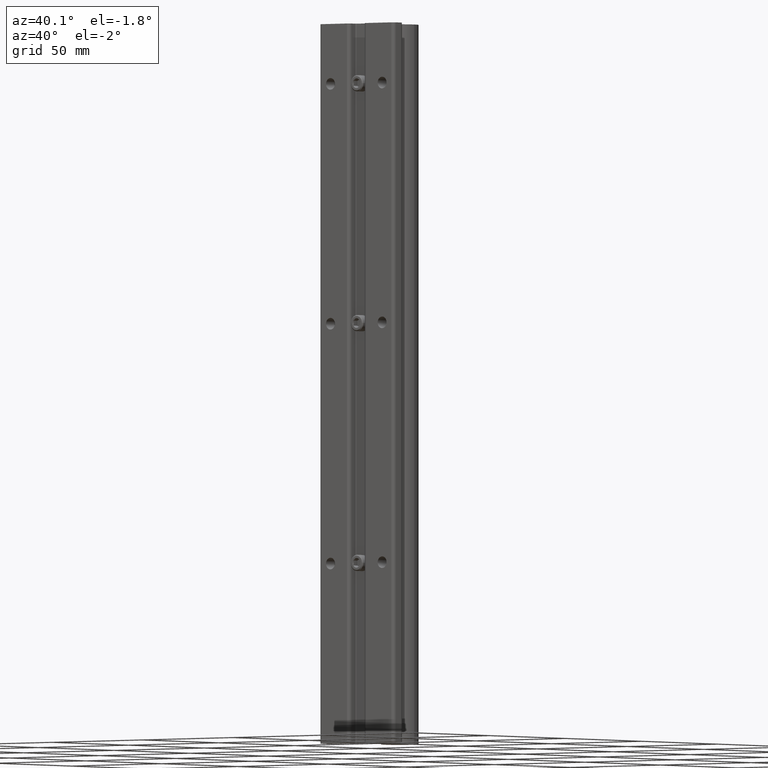
[diagram: clean part render]
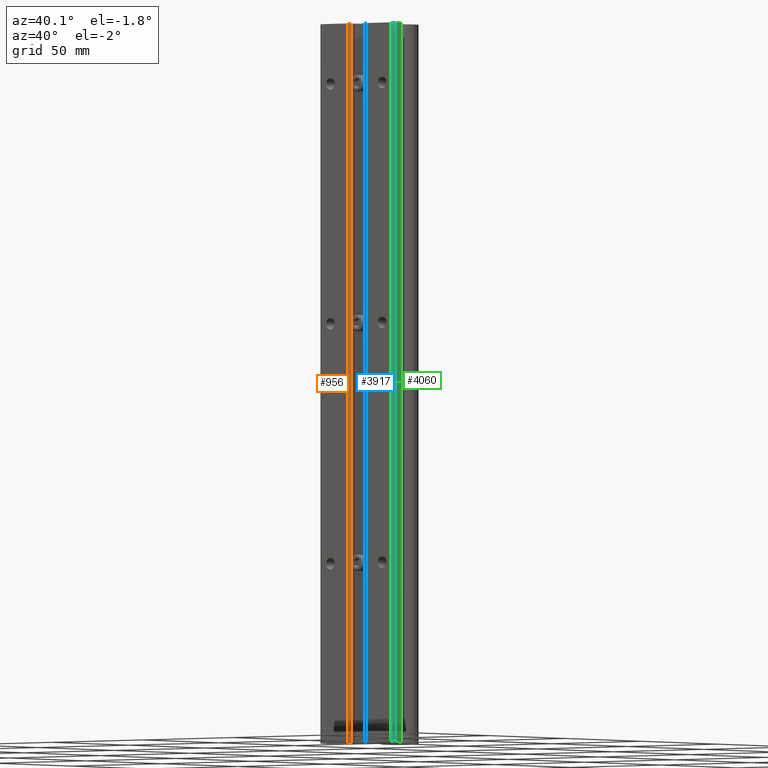
[diagram: same view with three faces highlighted in distinct colors, each labeled with its STEP entity id]
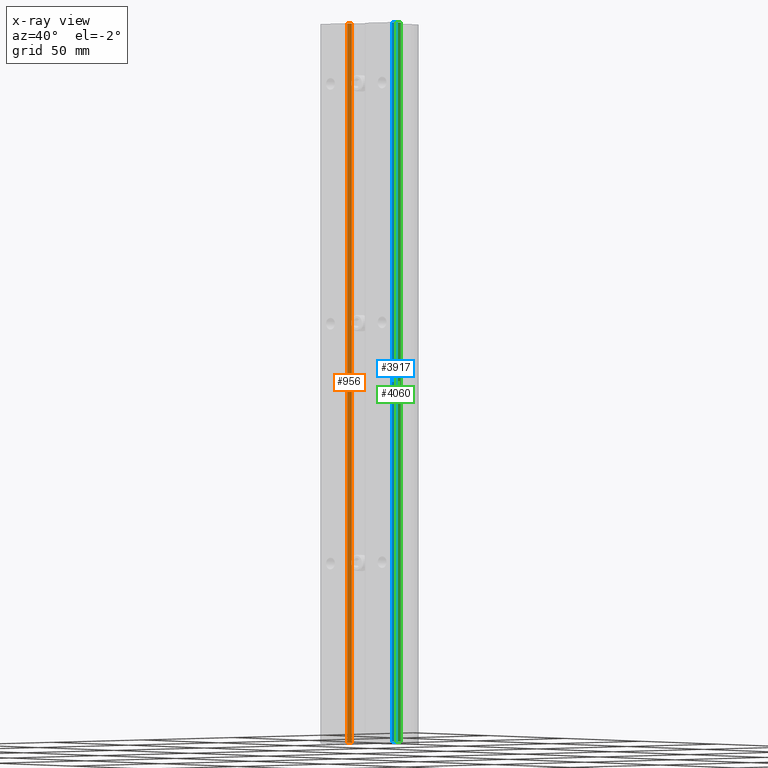
[diagram: x-ray of the same camera — body ghosted, the three highlighted faces saturated]
A machine part, auxiliary view with three faces highlighted in distinct colors.
The next image is the same camera in x-ray (body ghosted, the three faces saturated) — at least one of them is partly hidden behind the body in this view.
Their STEP definitions:

[orange] entity #956 — the highlighted cylindrical surface (edge-blend (fillet) strip) has radius 1.524 mm, axis along (0, 0, 1).
#124 = EDGE_LOOP ( 'NONE', ( #2429, #3411, #7536, #6951 ) ) ;
#333 = CIRCLE ( 'NONE', #586, 0.06000000000000010880 ) ;
#586 = AXIS2_PLACEMENT_3D ( 'NONE', #6562, #4735, #4158 ) ;
#594 = DIRECTION ( 'NONE',  ( -0.000000000000000000, -0.000000000000000000, -1.000000000000000000 ) ) ;
#671 = CARTESIAN_POINT ( 'NONE',  ( -0.1550000000000031908, 0.06000000000000021289, 0.000000000000000000 ) ) ;
#956 = ADVANCED_FACE ( 'NONE', ( #5830 ), #4510, .T. ) ;
#1044 = AXIS2_PLACEMENT_3D ( 'NONE', #4162, #594, #2940 ) ;
#1475 = DIRECTION ( 'NONE',  ( 0.000000000000000000, 0.000000000000000000, 1.000000000000000000 ) ) ;
#1623 = DIRECTION ( 'NONE',  ( 1.000000000000000000, 0.000000000000000000, 0.000000000000000000 ) ) ;
#1855 = VERTEX_POINT ( 'NONE', #5879 ) ;
#2429 = ORIENTED_EDGE ( 'NONE', *, *, #6572, .F. ) ;
#2673 = CARTESIAN_POINT ( 'NONE',  ( -0.2150000000000032996, 0.06000000000000021289, -13.83356500330709338 ) ) ;
#2834 = CIRCLE ( 'NONE', #1044, 0.06000000000000010880 ) ;
#2940 = DIRECTION ( 'NONE',  ( 1.000000000000000000, 0.000000000000000000, 0.000000000000000000 ) ) ;
#3238 = VERTEX_POINT ( 'NONE', #5891 ) ;
#3241 = VECTOR ( 'NONE', #6026, 39.37007874015748143 ) ;
#3411 = ORIENTED_EDGE ( 'NONE', *, *, #3704, .T. ) ;
#3463 = CARTESIAN_POINT ( 'NONE',  ( -0.1550000000000031908, 0.06000000000000021289, -13.83356500330709338 ) ) ;
#3704 = EDGE_CURVE ( 'NONE', #6028, #6601, #7102, .T. ) ;
#3763 = VECTOR ( 'NONE', #7050, 39.37007874015748143 ) ;
#4158 = DIRECTION ( 'NONE',  ( 1.000000000000000000, 0.000000000000000000, 0.000000000000000000 ) ) ;
#4162 = CARTESIAN_POINT ( 'NONE',  ( -0.2150000000000032996, 0.06000000000000021289, -12.00000000000000178 ) ) ;
#4510 = CYLINDRICAL_SURFACE ( 'NONE', #7381, 0.06000000000000010880 ) ;
#4735 = DIRECTION ( 'NONE',  ( 0.000000000000000000, 0.000000000000000000, 1.000000000000000000 ) ) ;
#4967 = EDGE_CURVE ( 'NONE', #3238, #6601, #333, .T. ) ;
#5075 = EDGE_CURVE ( 'NONE', #1855, #3238, #7009, .T. ) ;
#5830 = FACE_OUTER_BOUND ( 'NONE', #124, .T. ) ;
#5879 = CARTESIAN_POINT ( 'NONE',  ( -0.1944787914004638685, 0.003618442752845388386, -12.00000000000000178 ) ) ;
#5891 = CARTESIAN_POINT ( 'NONE',  ( -0.1944787914004638685, 0.003618442752845393157, 0.000000000000000000 ) ) ;
#6026 = DIRECTION ( 'NONE',  ( 0.000000000000000000, 0.000000000000000000, 1.000000000000000000 ) ) ;
#6028 = VERTEX_POINT ( 'NONE', #7212 ) ;
#6562 = CARTESIAN_POINT ( 'NONE',  ( -0.2150000000000032996, 0.06000000000000021289, 0.000000000000000000 ) ) ;
#6572 = EDGE_CURVE ( 'NONE', #6028, #1855, #2834, .T. ) ;
#6601 = VERTEX_POINT ( 'NONE', #671 ) ;
#6951 = ORIENTED_EDGE ( 'NONE', *, *, #5075, .F. ) ;
#7009 = LINE ( 'NONE', #7704, #3763 ) ;
#7050 = DIRECTION ( 'NONE',  ( 0.000000000000000000, 0.000000000000000000, 1.000000000000000000 ) ) ;
#7102 = LINE ( 'NONE', #3463, #3241 ) ;
#7212 = CARTESIAN_POINT ( 'NONE',  ( -0.1550000000000031908, 0.06000000000000021289, -12.00000000000000178 ) ) ;
#7381 = AXIS2_PLACEMENT_3D ( 'NONE', #2673, #1475, #1623 ) ;
#7536 = ORIENTED_EDGE ( 'NONE', *, *, #4967, .F. ) ;
#7704 = CARTESIAN_POINT ( 'NONE',  ( -0.1944787914004638685, 0.003618442752845393157, -13.83356500330709338 ) ) ;

[blue] entity #3917 — the highlighted cylindrical surface (edge-blend (fillet) strip) has radius 1.524 mm, axis along (0, 0, 1).
#117 = CARTESIAN_POINT ( 'NONE',  ( 0.8124999999999946709, 0.06000000000000021289, 0.000000000000000000 ) ) ;
#430 = DIRECTION ( 'NONE',  ( 0.000000000000000000, 0.000000000000000000, 1.000000000000000000 ) ) ;
#710 = CARTESIAN_POINT ( 'NONE',  ( 0.8124999999999946709, 0.06000000000000021289, -13.83356500330709338 ) ) ;
#920 = EDGE_CURVE ( 'NONE', #4661, #4462, #3949, .T. ) ;
#954 = CARTESIAN_POINT ( 'NONE',  ( 0.8124999999999946709, 0.06000000000000021289, -12.00000000000000178 ) ) ;
#986 = VERTEX_POINT ( 'NONE', #2872 ) ;
#1127 = DIRECTION ( 'NONE',  ( 1.000000000000000000, 0.000000000000000000, 0.000000000000000000 ) ) ;
#1423 = DIRECTION ( 'NONE',  ( 1.000000000000000000, 0.000000000000000000, 0.000000000000000000 ) ) ;
#1852 = CARTESIAN_POINT ( 'NONE',  ( 0.7730212085995341598, 0.003618442752845427417, -13.83356500330709338 ) ) ;
#1928 = LINE ( 'NONE', #710, #3003 ) ;
#2211 = ORIENTED_EDGE ( 'NONE', *, *, #5139, .T. ) ;
#2694 = AXIS2_PLACEMENT_3D ( 'NONE', #6530, #430, #1127 ) ;
#2872 = CARTESIAN_POINT ( 'NONE',  ( 0.7730212085995341598, 0.003618442752845393157, 0.000000000000000000 ) ) ;
#2942 = VECTOR ( 'NONE', #4852, 39.37007874015748143 ) ;
#3003 = VECTOR ( 'NONE', #3141, 39.37007874015748143 ) ;
#3020 = LINE ( 'NONE', #1852, #2942 ) ;
#3141 = DIRECTION ( 'NONE',  ( 0.000000000000000000, 0.000000000000000000, 1.000000000000000000 ) ) ;
#3198 = EDGE_CURVE ( 'NONE', #986, #4857, #3559, .T. ) ;
#3234 = EDGE_LOOP ( 'NONE', ( #4388, #2211, #3880, #4933 ) ) ;
#3351 = EDGE_CURVE ( 'NONE', #4462, #986, #3020, .T. ) ;
#3559 = CIRCLE ( 'NONE', #6996, 0.06000000000000017819 ) ;
#3880 = ORIENTED_EDGE ( 'NONE', *, *, #3198, .F. ) ;
#3917 = ADVANCED_FACE ( 'NONE', ( #6291 ), #5826, .T. ) ;
#3949 = CIRCLE ( 'NONE', #5124, 0.06000000000000017819 ) ;
#4388 = ORIENTED_EDGE ( 'NONE', *, *, #920, .F. ) ;
#4462 = VERTEX_POINT ( 'NONE', #7197 ) ;
#4583 = CARTESIAN_POINT ( 'NONE',  ( 0.7524999999999945066, 0.06000000000000021289, -12.00000000000000178 ) ) ;
#4661 = VERTEX_POINT ( 'NONE', #954 ) ;
#4852 = DIRECTION ( 'NONE',  ( 0.000000000000000000, 0.000000000000000000, 1.000000000000000000 ) ) ;
#4857 = VERTEX_POINT ( 'NONE', #117 ) ;
#4933 = ORIENTED_EDGE ( 'NONE', *, *, #3351, .F. ) ;
#5124 = AXIS2_PLACEMENT_3D ( 'NONE', #4583, #6486, #6980 ) ;
#5139 = EDGE_CURVE ( 'NONE', #4661, #4857, #1928, .T. ) ;
#5671 = CARTESIAN_POINT ( 'NONE',  ( 0.7524999999999945066, 0.06000000000000021289, 0.000000000000000000 ) ) ;
#5826 = CYLINDRICAL_SURFACE ( 'NONE', #2694, 0.06000000000000017819 ) ;
#6291 = FACE_OUTER_BOUND ( 'NONE', #3234, .T. ) ;
#6486 = DIRECTION ( 'NONE',  ( -0.000000000000000000, -0.000000000000000000, -1.000000000000000000 ) ) ;
#6530 = CARTESIAN_POINT ( 'NONE',  ( 0.7524999999999945066, 0.06000000000000021289, -13.83356500330709338 ) ) ;
#6861 = DIRECTION ( 'NONE',  ( 0.000000000000000000, 0.000000000000000000, 1.000000000000000000 ) ) ;
#6980 = DIRECTION ( 'NONE',  ( 1.000000000000000000, 0.000000000000000000, 0.000000000000000000 ) ) ;
#6996 = AXIS2_PLACEMENT_3D ( 'NONE', #5671, #6861, #1423 ) ;
#7197 = CARTESIAN_POINT ( 'NONE',  ( 0.7730212085995341598, 0.003618442752845448234, -12.00000000000000178 ) ) ;

[green] entity #4060 — the highlighted planar face has unit normal (1, 0, 0).
#117 = CARTESIAN_POINT ( 'NONE',  ( 0.8124999999999946709, 0.06000000000000021289, 0.000000000000000000 ) ) ;
#241 = ORIENTED_EDGE ( 'NONE', *, *, #5139, .F. ) ;
#531 = EDGE_CURVE ( 'NONE', #3386, #4661, #2245, .T. ) ;
#710 = CARTESIAN_POINT ( 'NONE',  ( 0.8124999999999946709, 0.06000000000000021289, -13.83356500330709338 ) ) ;
#898 = VECTOR ( 'NONE', #6051, 39.37007874015748143 ) ;
#954 = CARTESIAN_POINT ( 'NONE',  ( 0.8124999999999946709, 0.06000000000000021289, -12.00000000000000178 ) ) ;
#1928 = LINE ( 'NONE', #710, #3003 ) ;
#2023 = EDGE_LOOP ( 'NONE', ( #5756, #5467, #2826, #241 ) ) ;
#2245 = LINE ( 'NONE', #6003, #7095 ) ;
#2826 = ORIENTED_EDGE ( 'NONE', *, *, #4614, .F. ) ;
#2849 = PLANE ( 'NONE',  #6421 ) ;
#3003 = VECTOR ( 'NONE', #3141, 39.37007874015748143 ) ;
#3141 = DIRECTION ( 'NONE',  ( 0.000000000000000000, 0.000000000000000000, 1.000000000000000000 ) ) ;
#3367 = DIRECTION ( 'NONE',  ( 1.000000000000000000, 0.000000000000000000, 0.000000000000000000 ) ) ;
#3386 = VERTEX_POINT ( 'NONE', #3802 ) ;
#3388 = VERTEX_POINT ( 'NONE', #4415 ) ;
#3561 = LINE ( 'NONE', #6564, #898 ) ;
#3802 = CARTESIAN_POINT ( 'NONE',  ( 0.8124999999999946709, 0.1899999999999993361, -12.00000000000000178 ) ) ;
#3973 = DIRECTION ( 'NONE',  ( 0.000000000000000000, 1.000000000000000000, 0.000000000000000000 ) ) ;
#4060 = ADVANCED_FACE ( 'NONE', ( #6473 ), #2849, .T. ) ;
#4125 = VECTOR ( 'NONE', #3973, 39.37007874015748143 ) ;
#4415 = CARTESIAN_POINT ( 'NONE',  ( 0.8124999999999946709, 0.1899999999999993638, 0.000000000000000000 ) ) ;
#4614 = EDGE_CURVE ( 'NONE', #4857, #3388, #5195, .T. ) ;
#4661 = VERTEX_POINT ( 'NONE', #954 ) ;
#4857 = VERTEX_POINT ( 'NONE', #117 ) ;
#5139 = EDGE_CURVE ( 'NONE', #4661, #4857, #1928, .T. ) ;
#5195 = LINE ( 'NONE', #5828, #4125 ) ;
#5467 = ORIENTED_EDGE ( 'NONE', *, *, #6054, .T. ) ;
#5756 = ORIENTED_EDGE ( 'NONE', *, *, #531, .F. ) ;
#5828 = CARTESIAN_POINT ( 'NONE',  ( 0.8124999999999946709, 0.06000000000000021289, 0.000000000000000000 ) ) ;
#6003 = CARTESIAN_POINT ( 'NONE',  ( 0.8124999999999946709, 0.06000000000000021289, -12.00000000000000178 ) ) ;
#6051 = DIRECTION ( 'NONE',  ( 0.000000000000000000, 0.000000000000000000, 1.000000000000000000 ) ) ;
#6054 = EDGE_CURVE ( 'NONE', #3386, #3388, #3561, .T. ) ;
#6313 = CARTESIAN_POINT ( 'NONE',  ( 0.8124999999999946709, 0.06000000000000021289, -13.83356500330709338 ) ) ;
#6421 = AXIS2_PLACEMENT_3D ( 'NONE', #6313, #3367, #7694 ) ;
#6473 = FACE_OUTER_BOUND ( 'NONE', #2023, .T. ) ;
#6564 = CARTESIAN_POINT ( 'NONE',  ( 0.8124999999999946709, 0.1899999999999993638, -13.83356500330709338 ) ) ;
#7095 = VECTOR ( 'NONE', #7129, 39.37007874015748143 ) ;
#7129 = DIRECTION ( 'NONE',  ( 0.000000000000000000, -1.000000000000000000, 0.000000000000000000 ) ) ;
#7694 = DIRECTION ( 'NONE',  ( 0.000000000000000000, 0.000000000000000000, -1.000000000000000000 ) ) ;